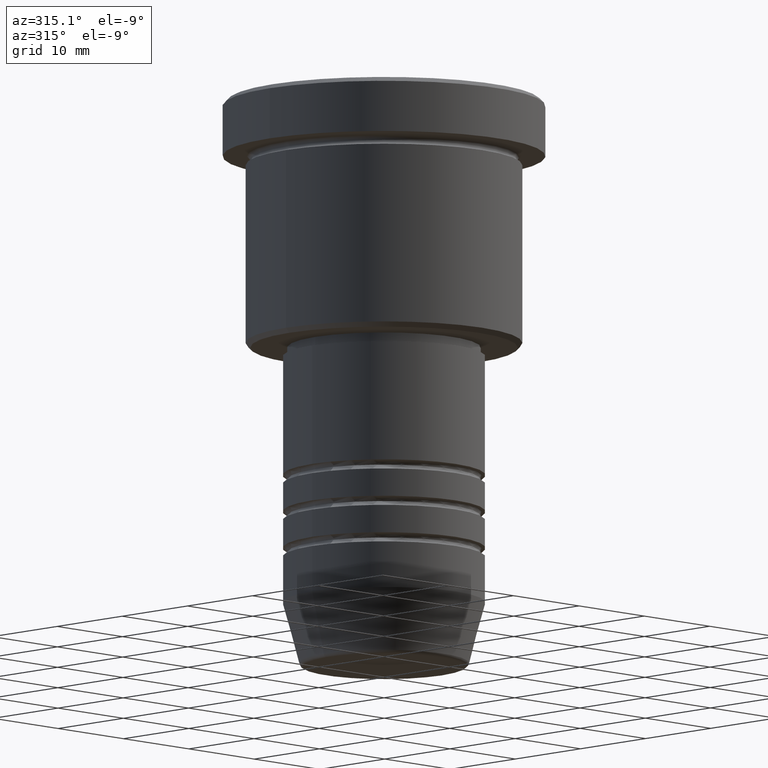
[diagram: clean part render]
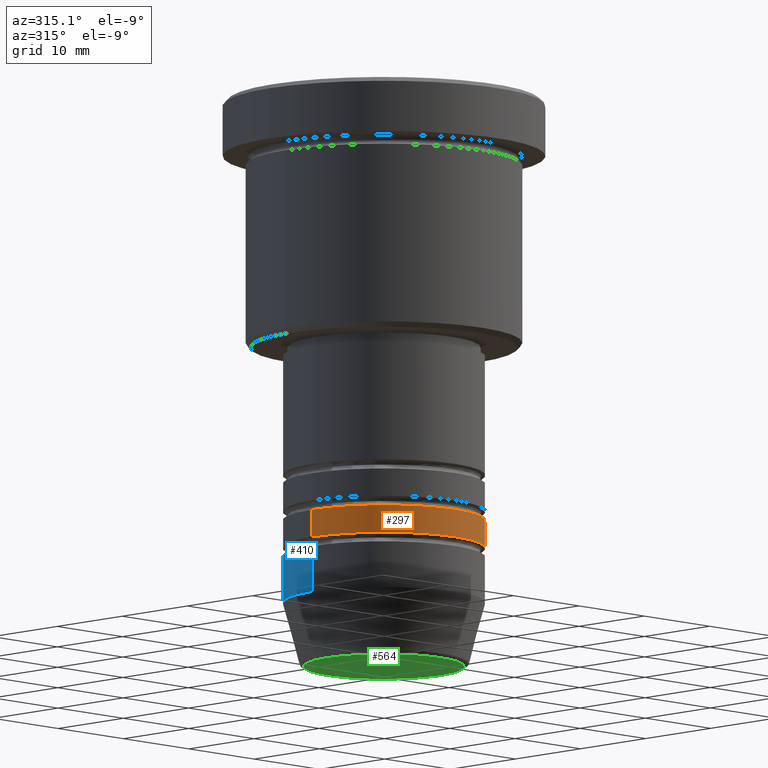
[diagram: same view with three faces highlighted in distinct colors, each labeled with its STEP entity id]
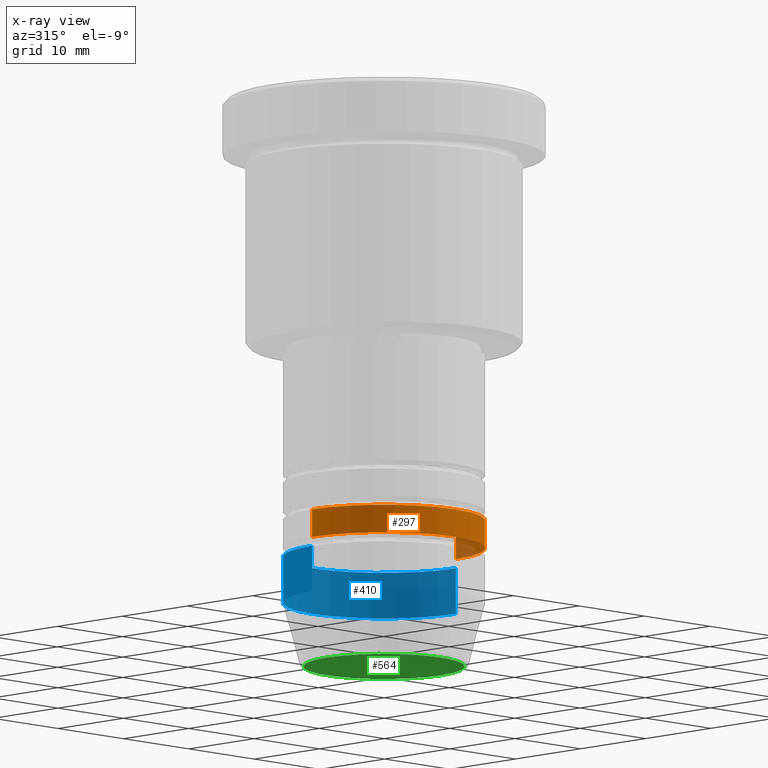
[diagram: x-ray of the same camera — body ghosted, the three highlighted faces saturated]
A machine part, auxiliary view with three faces highlighted in distinct colors.
The next image is the same camera in x-ray (body ghosted, the three faces saturated) — at least one of them is partly hidden behind the body in this view.
Their STEP definitions:

[orange] entity #297 — the highlighted cylindrical surface (partial cylindrical patch) has radius 11 mm, axis along (-0, -0, 1).
#42 = DIRECTION ( 'NONE',  ( -0.000000000000000000, -0.000000000000000000, 1.000000000000000000 ) ) ;
#63 = CARTESIAN_POINT ( 'NONE',  ( 11.00000000000000000, 0.000000000000000000, 0.000000000000000000 ) ) ;
#84 = EDGE_LOOP ( 'NONE', ( #977, #560, #202, #263 ) ) ;
#108 = VERTEX_POINT ( 'NONE', #1044 ) ;
#202 = ORIENTED_EDGE ( 'NONE', *, *, #752, .T. ) ;
#217 = CARTESIAN_POINT ( 'NONE',  ( 11.00000000000000000, 0.000000000000000000, -45.99999999999988631 ) ) ;
#221 = CARTESIAN_POINT ( 'NONE',  ( 0.000000000000000000, 0.000000000000000000, -45.99999999999988631 ) ) ;
#263 = ORIENTED_EDGE ( 'NONE', *, *, #1089, .F. ) ;
#264 = DIRECTION ( 'NONE',  ( -0.000000000000000000, -0.000000000000000000, 1.000000000000000000 ) ) ;
#285 = CARTESIAN_POINT ( 'NONE',  ( 0.000000000000000000, 0.000000000000000000, -48.99999999999988631 ) ) ;
#297 = ADVANCED_FACE ( 'NONE', ( #734 ), #305, .T. ) ;
#305 = CYLINDRICAL_SURFACE ( 'NONE', #796, 11.00000000000000000 ) ;
#377 = DIRECTION ( 'NONE',  ( -0.000000000000000000, -0.000000000000000000, 1.000000000000000000 ) ) ;
#441 = VERTEX_POINT ( 'NONE', #1141 ) ;
#481 = DIRECTION ( 'NONE',  ( 1.000000000000000000, 0.000000000000000000, 0.000000000000000000 ) ) ;
#493 = VERTEX_POINT ( 'NONE', #505 ) ;
#494 = VECTOR ( 'NONE', #42, 1000.000000000000000 ) ;
#498 = LINE ( 'NONE', #870, #494 ) ;
#505 = CARTESIAN_POINT ( 'NONE',  ( 11.00000000000000000, 0.000000000000000000, -48.99999999999988631 ) ) ;
#528 = LINE ( 'NONE', #63, #970 ) ;
#560 = ORIENTED_EDGE ( 'NONE', *, *, #1076, .T. ) ;
#578 = CARTESIAN_POINT ( 'NONE',  ( 0.000000000000000000, 0.000000000000000000, 0.000000000000000000 ) ) ;
#717 = EDGE_CURVE ( 'NONE', #108, #441, #498, .T. ) ;
#734 = FACE_OUTER_BOUND ( 'NONE', #84, .T. ) ;
#752 = EDGE_CURVE ( 'NONE', #493, #934, #528, .T. ) ;
#764 = AXIS2_PLACEMENT_3D ( 'NONE', #221, #852, #919 ) ;
#796 = AXIS2_PLACEMENT_3D ( 'NONE', #578, #1095, #481 ) ;
#845 = DIRECTION ( 'NONE',  ( 1.000000000000000000, 0.000000000000000000, 0.000000000000000000 ) ) ;
#852 = DIRECTION ( 'NONE',  ( -0.000000000000000000, -0.000000000000000000, 1.000000000000000000 ) ) ;
#870 = CARTESIAN_POINT ( 'NONE',  ( -11.00000000000000000, 1.347111479062088405E-15, 0.000000000000000000 ) ) ;
#884 = AXIS2_PLACEMENT_3D ( 'NONE', #285, #377, #845 ) ;
#919 = DIRECTION ( 'NONE',  ( 1.000000000000000000, 0.000000000000000000, 0.000000000000000000 ) ) ;
#933 = CIRCLE ( 'NONE', #884, 11.00000000000000000 ) ;
#934 = VERTEX_POINT ( 'NONE', #217 ) ;
#970 = VECTOR ( 'NONE', #264, 1000.000000000000000 ) ;
#977 = ORIENTED_EDGE ( 'NONE', *, *, #717, .F. ) ;
#1025 = CIRCLE ( 'NONE', #764, 11.00000000000000000 ) ;
#1044 = CARTESIAN_POINT ( 'NONE',  ( -11.00000000000000000, 1.347111479062088405E-15, -48.99999999999988631 ) ) ;
#1076 = EDGE_CURVE ( 'NONE', #108, #493, #933, .T. ) ;
#1089 = EDGE_CURVE ( 'NONE', #441, #934, #1025, .T. ) ;
#1095 = DIRECTION ( 'NONE',  ( -0.000000000000000000, -0.000000000000000000, 1.000000000000000000 ) ) ;
#1141 = CARTESIAN_POINT ( 'NONE',  ( -11.00000000000000000, 1.347111479062088405E-15, -45.99999999999988631 ) ) ;

[blue] entity #410 — the highlighted cylindrical surface (partial cylindrical patch) has radius 11 mm, axis along (-0, -0, 1).
#6 = DIRECTION ( 'NONE',  ( -0.000000000000000000, -0.000000000000000000, 1.000000000000000000 ) ) ;
#7 = EDGE_LOOP ( 'NONE', ( #985, #501, #240, #72 ) ) ;
#48 = DIRECTION ( 'NONE',  ( -0.000000000000000000, -0.000000000000000000, 1.000000000000000000 ) ) ;
#54 = CARTESIAN_POINT ( 'NONE',  ( -11.00000000000000000, 1.347111479062088405E-15, -50.00000000000000000 ) ) ;
#72 = ORIENTED_EDGE ( 'NONE', *, *, #1085, .F. ) ;
#93 = VECTOR ( 'NONE', #551, 1000.000000000000000 ) ;
#134 = AXIS2_PLACEMENT_3D ( 'NONE', #882, #48, #786 ) ;
#153 = AXIS2_PLACEMENT_3D ( 'NONE', #1029, #390, #1013 ) ;
#216 = AXIS2_PLACEMENT_3D ( 'NONE', #301, #6, #731 ) ;
#231 = VERTEX_POINT ( 'NONE', #818 ) ;
#233 = VECTOR ( 'NONE', #722, 1000.000000000000000 ) ;
#240 = ORIENTED_EDGE ( 'NONE', *, *, #1174, .F. ) ;
#301 = CARTESIAN_POINT ( 'NONE',  ( 0.000000000000000000, 0.000000000000000000, -55.00000000000000000 ) ) ;
#306 = CARTESIAN_POINT ( 'NONE',  ( 11.00000000000000000, 0.000000000000000000, 0.000000000000000000 ) ) ;
#379 = VERTEX_POINT ( 'NONE', #54 ) ;
#390 = DIRECTION ( 'NONE',  ( -0.000000000000000000, -0.000000000000000000, 1.000000000000000000 ) ) ;
#410 = ADVANCED_FACE ( 'NONE', ( #697 ), #968, .T. ) ;
#501 = ORIENTED_EDGE ( 'NONE', *, *, #836, .T. ) ;
#551 = DIRECTION ( 'NONE',  ( -0.000000000000000000, -0.000000000000000000, 1.000000000000000000 ) ) ;
#588 = CARTESIAN_POINT ( 'NONE',  ( 11.00000000000000000, 0.000000000000000000, -50.00000000000000000 ) ) ;
#606 = LINE ( 'NONE', #614, #233 ) ;
#608 = VERTEX_POINT ( 'NONE', #588 ) ;
#614 = CARTESIAN_POINT ( 'NONE',  ( -11.00000000000000000, 1.347111479062088405E-15, 0.000000000000000000 ) ) ;
#629 = CIRCLE ( 'NONE', #153, 11.00000000000000000 ) ;
#668 = CARTESIAN_POINT ( 'NONE',  ( -11.00000000000000000, 1.347111479062088405E-15, -55.00000000000000000 ) ) ;
#697 = FACE_OUTER_BOUND ( 'NONE', #7, .T. ) ;
#722 = DIRECTION ( 'NONE',  ( -0.000000000000000000, -0.000000000000000000, 1.000000000000000000 ) ) ;
#731 = DIRECTION ( 'NONE',  ( 1.000000000000000000, 0.000000000000000000, 0.000000000000000000 ) ) ;
#786 = DIRECTION ( 'NONE',  ( 1.000000000000000000, 0.000000000000000000, 0.000000000000000000 ) ) ;
#818 = CARTESIAN_POINT ( 'NONE',  ( 11.00000000000000000, 0.000000000000000000, -55.00000000000000000 ) ) ;
#836 = EDGE_CURVE ( 'NONE', #1106, #379, #606, .T. ) ;
#882 = CARTESIAN_POINT ( 'NONE',  ( 0.000000000000000000, 0.000000000000000000, 0.000000000000000000 ) ) ;
#968 = CYLINDRICAL_SURFACE ( 'NONE', #134, 11.00000000000000000 ) ;
#985 = ORIENTED_EDGE ( 'NONE', *, *, #1051, .T. ) ;
#1013 = DIRECTION ( 'NONE',  ( 1.000000000000000000, 0.000000000000000000, 0.000000000000000000 ) ) ;
#1029 = CARTESIAN_POINT ( 'NONE',  ( 0.000000000000000000, 0.000000000000000000, -50.00000000000000000 ) ) ;
#1051 = EDGE_CURVE ( 'NONE', #231, #1106, #1119, .T. ) ;
#1085 = EDGE_CURVE ( 'NONE', #231, #608, #1096, .T. ) ;
#1096 = LINE ( 'NONE', #306, #93 ) ;
#1106 = VERTEX_POINT ( 'NONE', #668 ) ;
#1119 = CIRCLE ( 'NONE', #216, 11.00000000000000000 ) ;
#1174 = EDGE_CURVE ( 'NONE', #608, #379, #629, .T. ) ;

[green] entity #564 — the highlighted planar face has unit normal (0, -0, 1).
#11 = CARTESIAN_POINT ( 'NONE',  ( 0.000000000000000000, 0.000000000000000000, -62.00000000000000000 ) ) ;
#14 = CIRCLE ( 'NONE', #900, 8.740692158992652949 ) ;
#23 = DIRECTION ( 'NONE',  ( 0.000000000000000000, 0.000000000000000000, -1.000000000000000000 ) ) ;
#109 = CARTESIAN_POINT ( 'NONE',  ( 0.000000000000000000, 0.000000000000000000, -62.00000000000000000 ) ) ;
#203 = DIRECTION ( 'NONE',  ( 0.000000000000000000, -0.000000000000000000, 1.000000000000000000 ) ) ;
#270 = VERTEX_POINT ( 'NONE', #667 ) ;
#331 = AXIS2_PLACEMENT_3D ( 'NONE', #109, #203, #555 ) ;
#354 = PLANE ( 'NONE',  #331 ) ;
#367 = EDGE_LOOP ( 'NONE', ( #700, #1065 ) ) ;
#471 = VERTEX_POINT ( 'NONE', #1045 ) ;
#496 = AXIS2_PLACEMENT_3D ( 'NONE', #925, #23, #1108 ) ;
#555 = DIRECTION ( 'NONE',  ( 1.000000000000000000, 0.000000000000000000, 0.000000000000000000 ) ) ;
#564 = ADVANCED_FACE ( 'NONE', ( #1164 ), #354, .F. ) ;
#565 = DIRECTION ( 'NONE',  ( 0.000000000000000000, 0.000000000000000000, -1.000000000000000000 ) ) ;
#667 = CARTESIAN_POINT ( 'NONE',  ( -8.740692158992652949, 1.099999016768738864E-15, -62.00000000000000000 ) ) ;
#700 = ORIENTED_EDGE ( 'NONE', *, *, #1023, .T. ) ;
#704 = CIRCLE ( 'NONE', #496, 8.740692158992652949 ) ;
#900 = AXIS2_PLACEMENT_3D ( 'NONE', #11, #565, #1109 ) ;
#925 = CARTESIAN_POINT ( 'NONE',  ( 0.000000000000000000, 0.000000000000000000, -62.00000000000000000 ) ) ;
#1023 = EDGE_CURVE ( 'NONE', #471, #270, #14, .T. ) ;
#1045 = CARTESIAN_POINT ( 'NONE',  ( 8.740692158992652949, 0.000000000000000000, -62.00000000000000000 ) ) ;
#1065 = ORIENTED_EDGE ( 'NONE', *, *, #1160, .T. ) ;
#1108 = DIRECTION ( 'NONE',  ( 1.000000000000000000, 0.000000000000000000, 0.000000000000000000 ) ) ;
#1109 = DIRECTION ( 'NONE',  ( 1.000000000000000000, 0.000000000000000000, 0.000000000000000000 ) ) ;
#1160 = EDGE_CURVE ( 'NONE', #270, #471, #704, .T. ) ;
#1164 = FACE_OUTER_BOUND ( 'NONE', #367, .T. ) ;